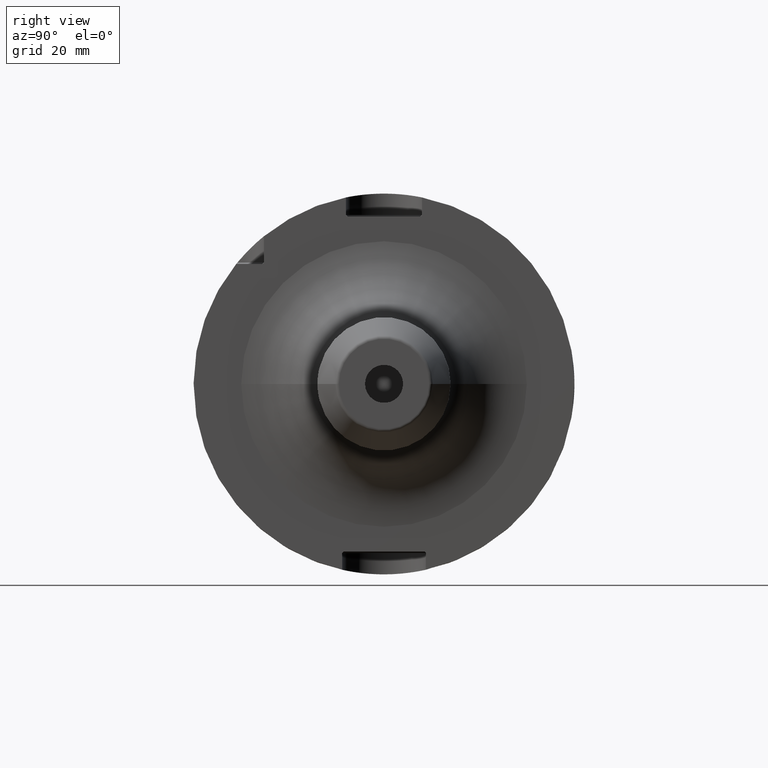
[diagram: clean part render]
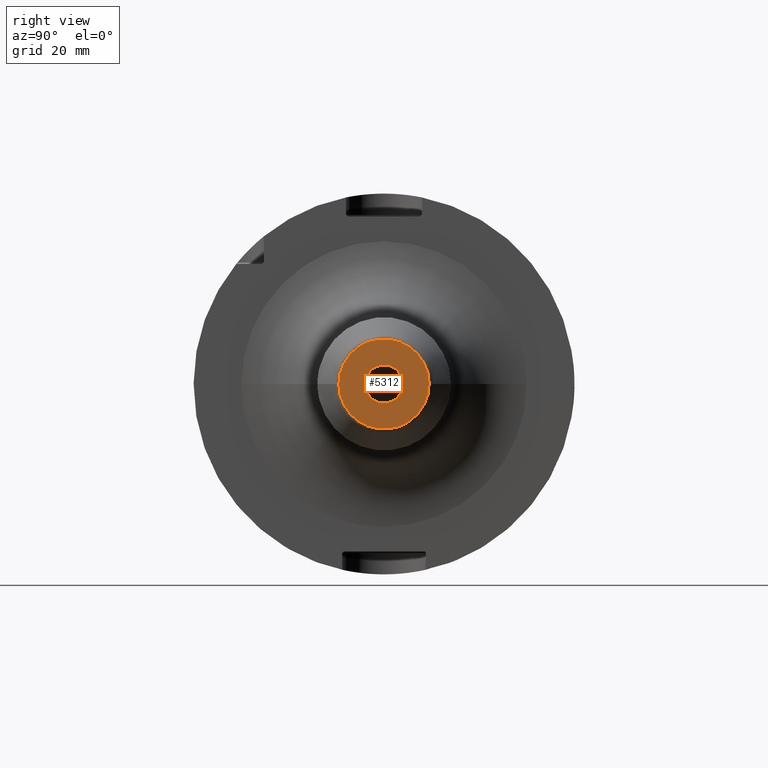
[diagram: same view with one face highlighted and labeled with its STEP entity id]
A machine part, right view. The second image highlights one B-rep face of the part: STEP entity #5312.
In plain terms, the highlighted planar face has unit normal (1, 0, 0).
Its self-contained STEP definition (entity closure, byte-faithful):
#1960=CARTESIAN_POINT('',(8.E1,0.E0,0.E0));
#1961=DIRECTION('',(-1.E0,0.E0,0.E0));
#1962=DIRECTION('',(0.E0,1.E0,0.E0));
#1963=AXIS2_PLACEMENT_3D('',#1960,#1961,#1962);
#1965=CARTESIAN_POINT('',(8.E1,0.E0,0.E0));
#1966=DIRECTION('',(-1.E0,0.E0,0.E0));
#1967=DIRECTION('',(0.E0,-1.E0,0.E0));
#1968=AXIS2_PLACEMENT_3D('',#1965,#1966,#1967);
#1970=CARTESIAN_POINT('',(8.E1,0.E0,0.E0));
#1971=DIRECTION('',(1.E0,0.E0,0.E0));
#1972=DIRECTION('',(0.E0,1.E0,0.E0));
#1973=AXIS2_PLACEMENT_3D('',#1970,#1971,#1972);
#1975=CARTESIAN_POINT('',(8.E1,0.E0,0.E0));
#1976=DIRECTION('',(1.E0,0.E0,0.E0));
#1977=DIRECTION('',(0.E0,-1.E0,0.E0));
#1978=AXIS2_PLACEMENT_3D('',#1975,#1976,#1977);
#3283=CARTESIAN_POINT('',(8.E1,5.E0,0.E0));
#3284=VERTEX_POINT('',#3283);
#3295=CARTESIAN_POINT('',(8.E1,1.186292973919E1,0.E0));
#3296=CARTESIAN_POINT('',(8.E1,-1.186292973919E1,0.E0));
#3297=VERTEX_POINT('',#3295);
#3298=VERTEX_POINT('',#3296);
#3299=CARTESIAN_POINT('',(8.E1,-5.E0,0.E0));
#3300=VERTEX_POINT('',#3299);
#5297=CARTESIAN_POINT('',(8.E1,0.E0,0.E0));
#5298=DIRECTION('',(1.E0,0.E0,0.E0));
#5299=DIRECTION('',(0.E0,-1.E0,0.E0));
#5300=AXIS2_PLACEMENT_3D('',#5297,#5298,#5299);
#5301=PLANE('',#5300);
#5302=ORIENTED_EDGE('',*,*,#5277,.T.);
#5303=ORIENTED_EDGE('',*,*,#5291,.T.);
#5304=EDGE_LOOP('',(#5302,#5303));
#5305=FACE_OUTER_BOUND('',#5304,.F.);
#5307=ORIENTED_EDGE('',*,*,#5306,.T.);
#5309=ORIENTED_EDGE('',*,*,#5308,.T.);
#5310=EDGE_LOOP('',(#5307,#5309));
#5311=FACE_BOUND('',#5310,.F.);
#5312=ADVANCED_FACE('',(#5305,#5311),#5301,.T.);
#1964=CIRCLE('',#1963,1.186292973919E1);
#1969=CIRCLE('',#1968,1.186292973919E1);
#1974=CIRCLE('',#1973,5.E0);
#1979=CIRCLE('',#1978,5.E0);
#5277=EDGE_CURVE('',#3297,#3298,#1964,.T.);
#5291=EDGE_CURVE('',#3298,#3297,#1969,.T.);
#5306=EDGE_CURVE('',#3284,#3300,#1974,.T.);
#5308=EDGE_CURVE('',#3300,#3284,#1979,.T.);